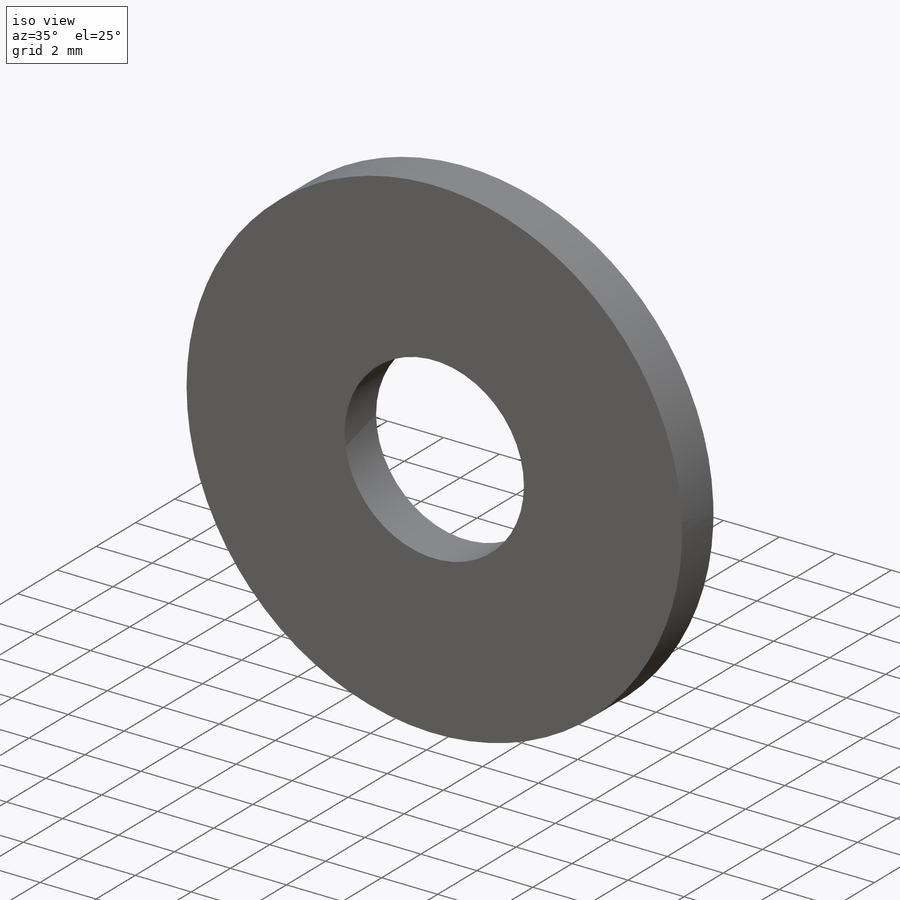
[diagram: iso view]
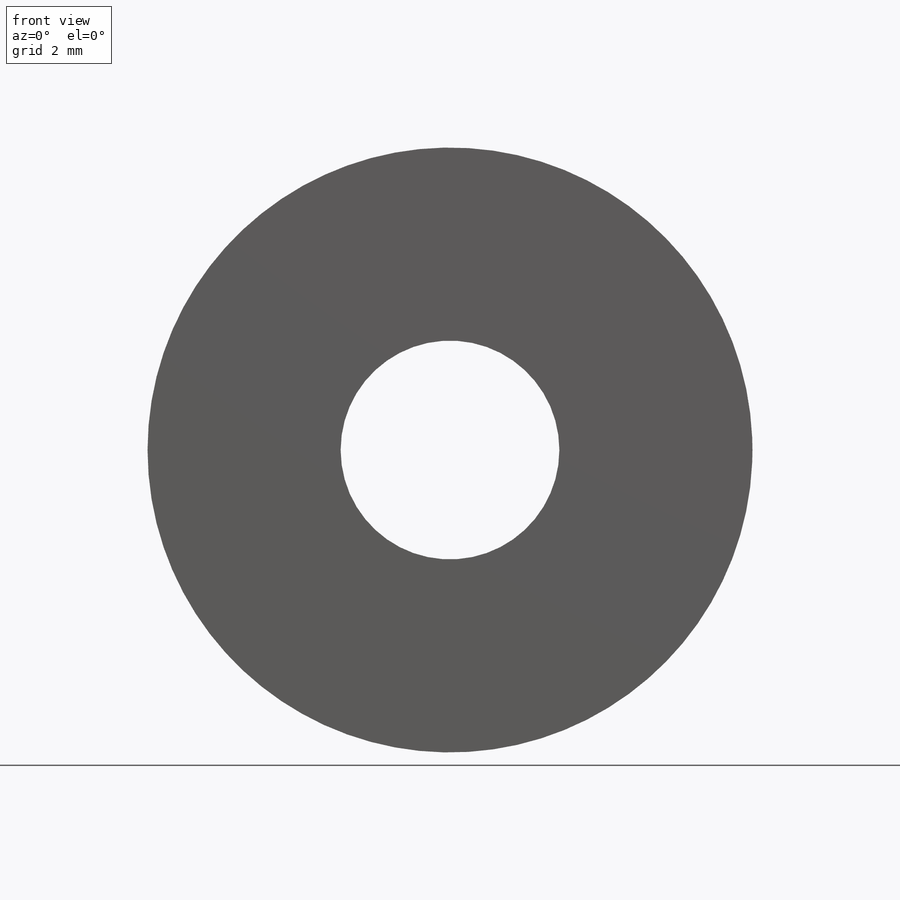
[diagram: front view]
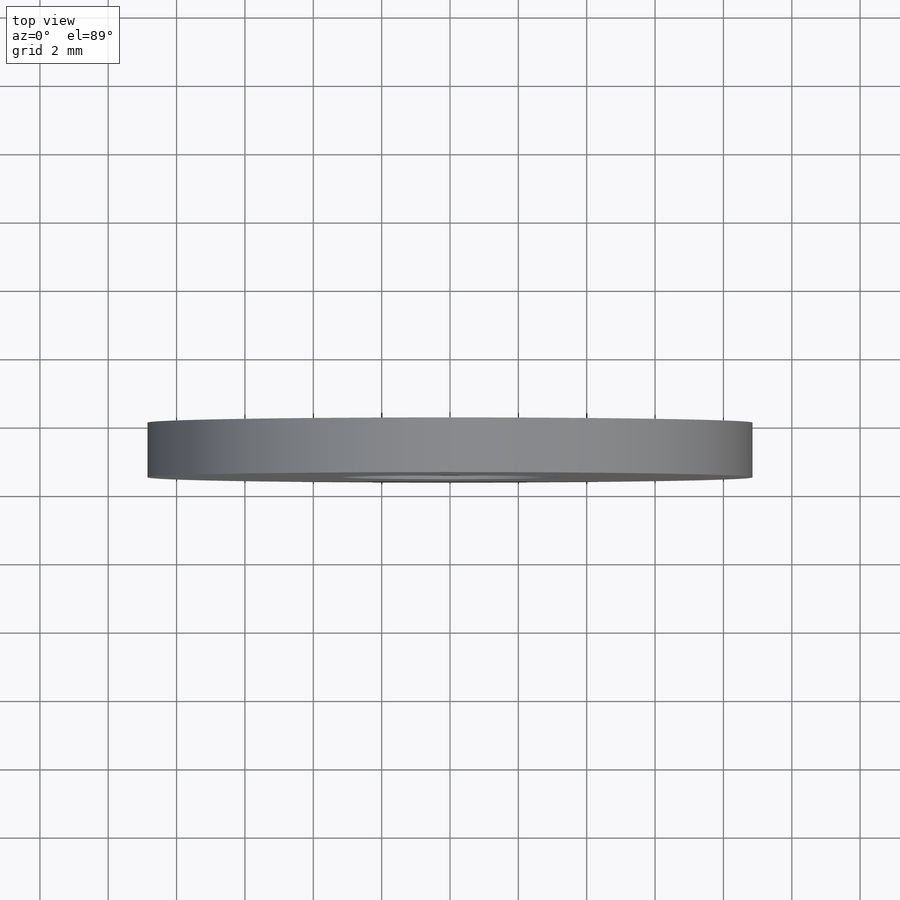
[diagram: top view]
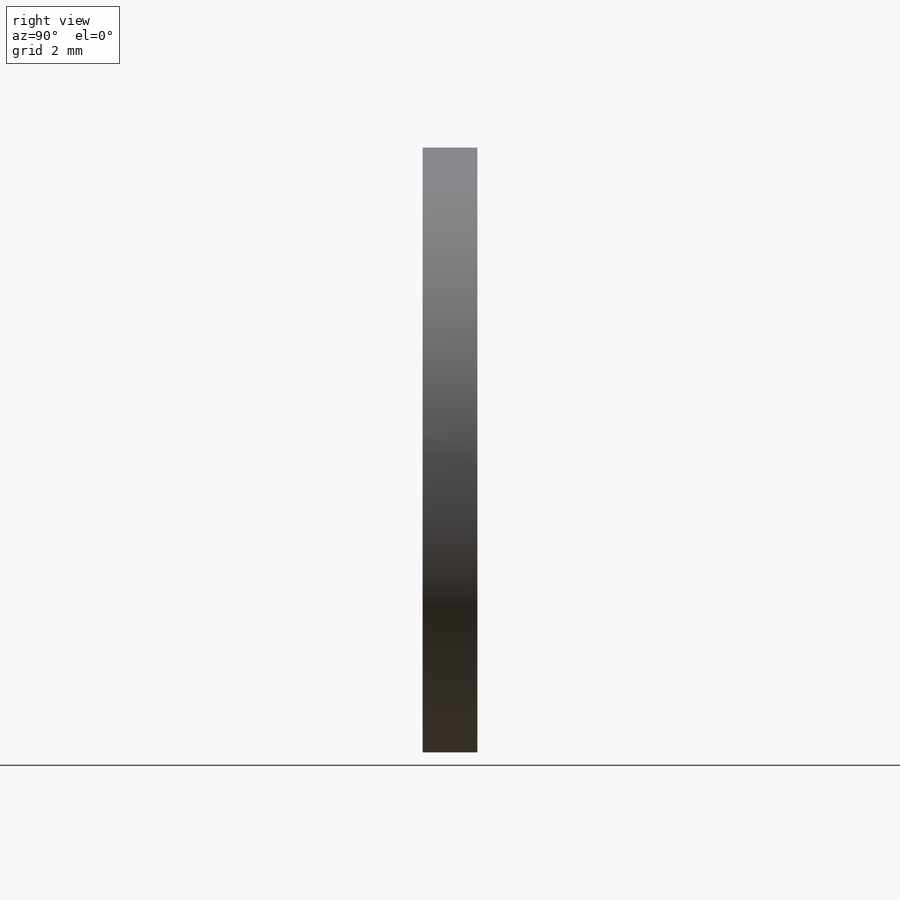
[diagram: right view]
SOLIDWORKS PART (.sldprt)
format: sldprt  version: not decoded by parser v0  size: 1,406,464 bytes
history: native  units: mm
features: sketch x6, extrude x4, plane x3, cut_extrude x2, pattern_circular x2, material x1 + 1 further entry (+13 scaffold rows collapsed; 1 parser-record rows omitted)
feature tree (33):
  parser-record x1  (decoder bookkeeping rows leaked as tree rows — omitted from the tree; the rows remain in map.json)
  scaffold x13  (default folders/planes/origin — collapsed)
  material  "Material <not specified>"
  plane  "Plane1"
  plane  "Plane2"
  plane  "Plane3"
  "Design Table"
  sketch  "Sketch1"  dims[d1 Huldiameter=10.5mm d2 Udv.diameter=20.0mm]
  extrude  "Base-Extrude"  Depth=2mm s Tykkelse=2mm
  sketch  "Sketch2"  dims[D1=3.0mm D2=15.0mm]
  cut_extrude  "Cut-Extrude1"  [1 undecoded]
  sketch  "Sketch3"
  extrude  "Boss-Extrude3"  Depth=0.5mm ID=-1
  sketch  "Sketch4"  dims[d=25.0mm d1=32.0mm D3=25.0mm f=5.0mm M=23.0mm]
  extrude  "Extrude1"  Depth=1.25mm B=1.25mm
  sketch  "Sketch5"  dims[c1.D3=1.0mm c1.D1=~1.353272mm c1.d2=42.0mm c1.D4=3.0mm c1.D5=3.0mm c2.D5=35.0deg]
  extrude  "Extrude2"  [1 undecoded]
  pattern_circular  "CirPattern1"  Count=13 Angle=360deg Antal toppe=13
  sketch  "Sketch6"  dims[D1=1.0mm]
  cut_extrude  "Cut-Extrude2"  [1 undecoded]
  pattern_circular  "CirPattern2"  Count=6 Angle=360deg Thickness=1.25mm
decode coverage: 10 of 14 modeling features carry decoded parameters; 1 rows unclassified (native names shown)
note: ~ marks probable driven/reference dimensions
note: 3 parameter values undecoded
summary: no parameter record found for 3 features
note: suppression state not decoded; provenance and decode notes live in map.json
